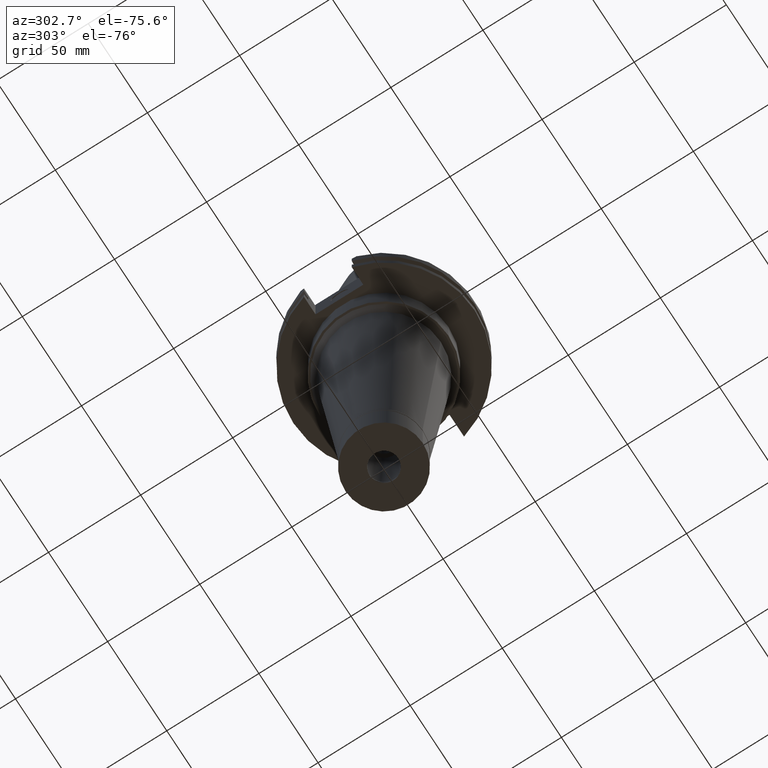
[diagram: clean part render]
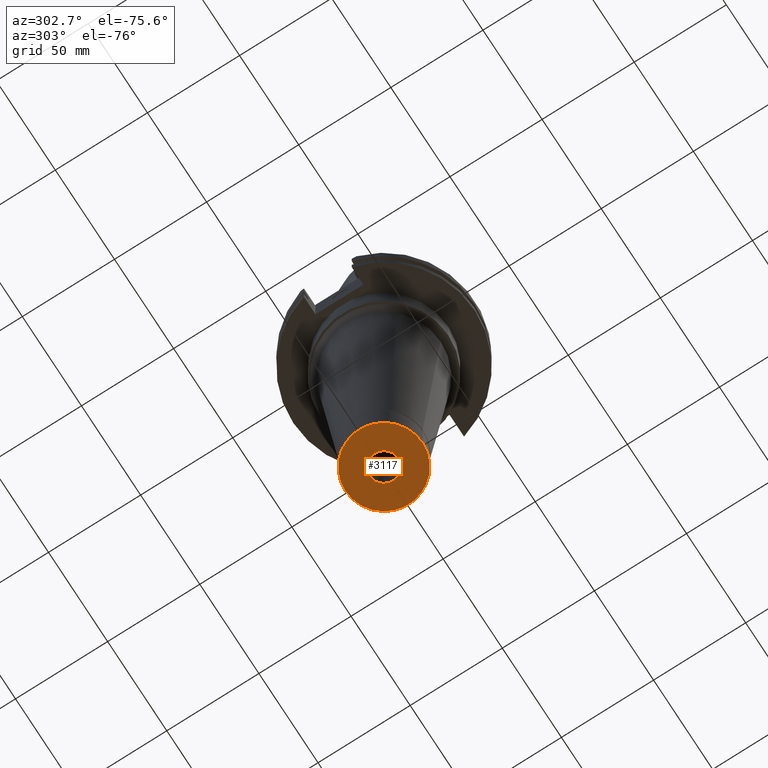
[diagram: same view with one face highlighted and labeled with its STEP entity id]
A machine part, auxiliary view. The second image highlights one B-rep face of the part: STEP entity #3117.
In plain terms, the highlighted planar face has unit normal (0, 0, -1).
Its self-contained STEP definition (entity closure, byte-faithful):
#43 = CARTESIAN_POINT ( 'NONE',  ( 0.0000000000000000000, 0.0000000000000000000, -24.29999999999999716 ) ) ;
#182 = AXIS2_PLACEMENT_3D ( 'NONE', #3210, #1710, #2213 ) ;
#367 = DIRECTION ( 'NONE',  ( 0.0000000000000000000, 0.0000000000000000000, -1.000000000000000000 ) ) ;
#406 = CIRCLE ( 'NONE', #2846, 7.700000000000000178 ) ;
#412 = AXIS2_PLACEMENT_3D ( 'NONE', #43, #1593, #1082 ) ;
#420 = EDGE_CURVE ( 'NONE', #1251, #2308, #954, .T. ) ;
#456 = EDGE_CURVE ( 'NONE', #2308, #1251, #2240, .T. ) ;
#659 = CARTESIAN_POINT ( 'NONE',  ( 0.0000000000000000000, 0.0000000000000000000, -24.29999999999999716 ) ) ;
#674 = CARTESIAN_POINT ( 'NONE',  ( 0.0000000000000000000, 0.0000000000000000000, -24.29999999999999716 ) ) ;
#754 = VERTEX_POINT ( 'NONE', #2503 ) ;
#905 = CIRCLE ( 'NONE', #1872, 7.700000000000000178 ) ;
#954 = CIRCLE ( 'NONE', #412, 21.00000000000000000 ) ;
#1044 = EDGE_LOOP ( 'NONE', ( #2505, #1413 ) ) ;
#1082 = DIRECTION ( 'NONE',  ( 0.0000000000000000000, 1.000000000000000000, 0.0000000000000000000 ) ) ;
#1183 = CARTESIAN_POINT ( 'NONE',  ( 0.0000000000000000000, 21.00000000000000000, -24.29999999999999716 ) ) ;
#1246 = CARTESIAN_POINT ( 'NONE',  ( 0.0000000000000000000, 0.0000000000000000000, -24.29999999999999716 ) ) ;
#1251 = VERTEX_POINT ( 'NONE', #1183 ) ;
#1278 = DIRECTION ( 'NONE',  ( 0.0000000000000000000, 1.000000000000000000, 0.0000000000000000000 ) ) ;
#1285 = EDGE_LOOP ( 'NONE', ( #2953, #2618 ) ) ;
#1408 = FACE_OUTER_BOUND ( 'NONE', #1285, .T. ) ;
#1413 = ORIENTED_EDGE ( 'NONE', *, *, #3139, .F. ) ;
#1423 = PLANE ( 'NONE',  #1427 ) ;
#1427 = AXIS2_PLACEMENT_3D ( 'NONE', #674, #367, #1440 ) ;
#1440 = DIRECTION ( 'NONE',  ( 0.0000000000000000000, -1.000000000000000000, 0.0000000000000000000 ) ) ;
#1593 = DIRECTION ( 'NONE',  ( 0.0000000000000000000, 0.0000000000000000000, 1.000000000000000000 ) ) ;
#1710 = DIRECTION ( 'NONE',  ( 0.0000000000000000000, 0.0000000000000000000, 1.000000000000000000 ) ) ;
#1872 = AXIS2_PLACEMENT_3D ( 'NONE', #1246, #2536, #1278 ) ;
#2182 = DIRECTION ( 'NONE',  ( 0.0000000000000000000, 0.0000000000000000000, -1.000000000000000000 ) ) ;
#2213 = DIRECTION ( 'NONE',  ( 0.0000000000000000000, -1.000000000000000000, 0.0000000000000000000 ) ) ;
#2240 = CIRCLE ( 'NONE', #182, 21.00000000000000000 ) ;
#2308 = VERTEX_POINT ( 'NONE', #2964 ) ;
#2437 = DIRECTION ( 'NONE',  ( 0.0000000000000000000, -1.000000000000000000, 0.0000000000000000000 ) ) ;
#2446 = EDGE_CURVE ( 'NONE', #754, #3005, #905, .T. ) ;
#2503 = CARTESIAN_POINT ( 'NONE',  ( 0.0000000000000000000, 7.700000000000000178, -24.29999999999999716 ) ) ;
#2505 = ORIENTED_EDGE ( 'NONE', *, *, #2446, .F. ) ;
#2536 = DIRECTION ( 'NONE',  ( 0.0000000000000000000, 0.0000000000000000000, -1.000000000000000000 ) ) ;
#2618 = ORIENTED_EDGE ( 'NONE', *, *, #456, .F. ) ;
#2818 = CARTESIAN_POINT ( 'NONE',  ( 0.0000000000000000000, -7.700000000000000178, -24.29999999999999716 ) ) ;
#2846 = AXIS2_PLACEMENT_3D ( 'NONE', #659, #2182, #2437 ) ;
#2941 = FACE_BOUND ( 'NONE', #1044, .T. ) ;
#2953 = ORIENTED_EDGE ( 'NONE', *, *, #420, .F. ) ;
#2964 = CARTESIAN_POINT ( 'NONE',  ( 0.0000000000000000000, -21.00000000000000000, -24.29999999999999716 ) ) ;
#3005 = VERTEX_POINT ( 'NONE', #2818 ) ;
#3117 = ADVANCED_FACE ( 'NONE', ( #1408, #2941 ), #1423, .T. ) ;
#3139 = EDGE_CURVE ( 'NONE', #3005, #754, #406, .T. ) ;
#3210 = CARTESIAN_POINT ( 'NONE',  ( 0.0000000000000000000, 0.0000000000000000000, -24.29999999999999716 ) ) ;